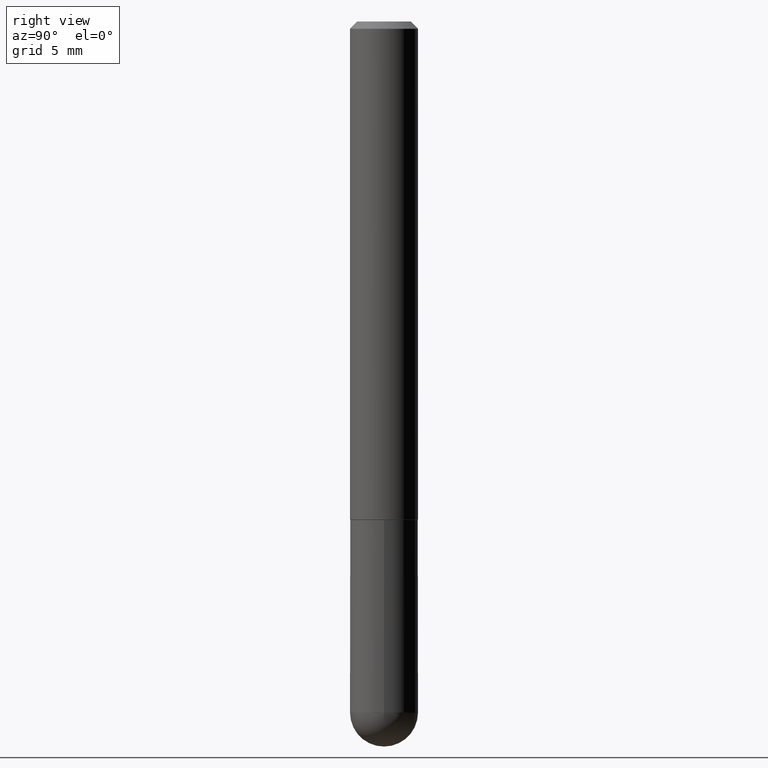
[diagram: clean part render]
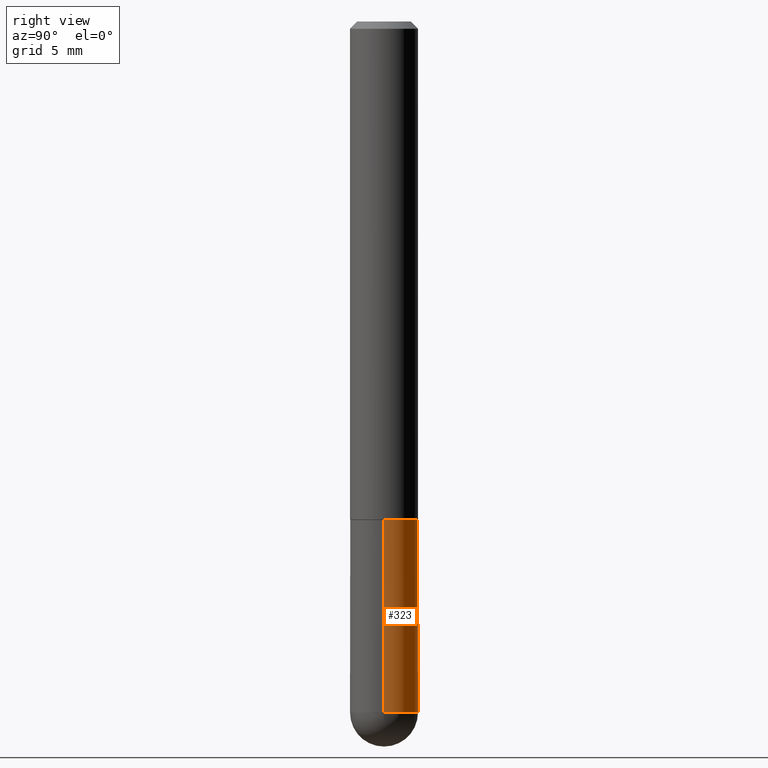
[diagram: same view with one face highlighted and labeled with its STEP entity id]
A machine part, right view. The second image highlights one B-rep face of the part: STEP entity #323.
In plain terms, the highlighted cylindrical surface (edge-blend (fillet) strip) has radius 2.3813 mm, axis along (-0, 0, 1).
Its self-contained STEP definition (entity closure, byte-faithful):
#4 = DIRECTION ( 'NONE',  ( -2.445468806185136597E-29, 3.491481338843145583E-15, 1.000000000000000000 ) ) ;
#6 = EDGE_LOOP ( 'NONE', ( #208, #407, #171, #248, #200 ) ) ;
#20 = DIRECTION ( 'NONE',  ( -2.445468806185136597E-29, 3.491481338843145583E-15, 1.000000000000000000 ) ) ;
#25 = DIRECTION ( 'NONE',  ( -2.445468806185136597E-29, 3.491481338843145583E-15, 1.000000000000000000 ) ) ;
#50 = CARTESIAN_POINT ( 'NONE',  ( 6.546527510331332580E-16, 0.09374999999999322764, -1.906250000000000222 ) ) ;
#60 = CARTESIAN_POINT ( 'NONE',  ( 4.661674911790416638E-29, -6.655636302169745441E-15, -1.906250000000000000 ) ) ;
#65 = DIRECTION ( 'NONE',  ( -2.445468806185136877E-29, 3.491481338843145188E-15, 1.000000000000000000 ) ) ;
#80 = AXIS2_PLACEMENT_3D ( 'NONE', #192, #262, #194 ) ;
#94 = EDGE_CURVE ( 'NONE', #401, #237, #108, .T. ) ;
#99 = DIRECTION ( 'NONE',  ( 1.000000000000000000, -6.982962677686261189E-15, 0.000000000000000000 ) ) ;
#102 = CARTESIAN_POINT ( 'NONE',  ( -0.09375000000000001388, -5.062077756764441261E-15, -1.375000000000000000 ) ) ;
#108 = CIRCLE ( 'NONE', #175, 0.09375000000000001388 ) ;
#125 = DIRECTION ( 'NONE',  ( 1.000000000000000000, -6.982962677686261189E-15, 0.000000000000000000 ) ) ;
#131 = CYLINDRICAL_SURFACE ( 'NONE', #80, 0.09375000000000001388 ) ;
#132 = LINE ( 'NONE', #383, #239 ) ;
#138 = AXIS2_PLACEMENT_3D ( 'NONE', #60, #25, #155 ) ;
#155 = DIRECTION ( 'NONE',  ( 1.000000000000000000, -6.982962677686261189E-15, 0.000000000000000000 ) ) ;
#157 = DIRECTION ( 'NONE',  ( -2.445468806185136877E-29, 3.491481338843145188E-15, 1.000000000000000000 ) ) ;
#171 = ORIENTED_EDGE ( 'NONE', *, *, #94, .F. ) ;
#174 = EDGE_CURVE ( 'NONE', #363, #328, #216, .T. ) ;
#175 = AXIS2_PLACEMENT_3D ( 'NONE', #408, #20, #125 ) ;
#188 = CARTESIAN_POINT ( 'NONE',  ( -0.09375000000000001388, 6.661338147750940229E-16, -4.611501647113973995E-30 ) ) ;
#192 = CARTESIAN_POINT ( 'NONE',  ( 0.000000000000000000, 0.000000000000000000, 0.000000000000000000 ) ) ;
#194 = DIRECTION ( 'NONE',  ( 1.000000000000000000, -6.982962677686265922E-15, 4.876176775795935793E-29 ) ) ;
#196 = CARTESIAN_POINT ( 'NONE',  ( 0.09375000000000001388, -5.455439591942412434E-15, -1.375000000000000000 ) ) ;
#200 = ORIENTED_EDGE ( 'NONE', *, *, #174, .T. ) ;
#208 = ORIENTED_EDGE ( 'NONE', *, *, #317, .T. ) ;
#216 = CIRCLE ( 'NONE', #138, 0.09375000000000001388 ) ;
#224 = FACE_OUTER_BOUND ( 'NONE', #6, .T. ) ;
#229 = VECTOR ( 'NONE', #65, 39.37007874015748143 ) ;
#237 = VERTEX_POINT ( 'NONE', #102 ) ;
#238 = CARTESIAN_POINT ( 'NONE',  ( 0.09375000000000001388, -6.382864322572621901E-15, -1.906250000000000000 ) ) ;
#239 = VECTOR ( 'NONE', #157, 39.37007874015748143 ) ;
#240 = VERTEX_POINT ( 'NONE', #387 ) ;
#241 = EDGE_CURVE ( 'NONE', #363, #401, #132, .T. ) ;
#248 = ORIENTED_EDGE ( 'NONE', *, *, #241, .F. ) ;
#261 = AXIS2_PLACEMENT_3D ( 'NONE', #320, #4, #99 ) ;
#262 = DIRECTION ( 'NONE',  ( -2.445468806185136597E-29, 3.491481338843145583E-15, 1.000000000000000000 ) ) ;
#311 = EDGE_CURVE ( 'NONE', #240, #237, #385, .T. ) ;
#317 = EDGE_CURVE ( 'NONE', #328, #240, #343, .T. ) ;
#320 = CARTESIAN_POINT ( 'NONE',  ( 4.661674911790416638E-29, -6.655636302169745441E-15, -1.906250000000000000 ) ) ;
#323 = ADVANCED_FACE ( 'NONE', ( #224 ), #131, .T. ) ;
#328 = VERTEX_POINT ( 'NONE', #50 ) ;
#343 = CIRCLE ( 'NONE', #261, 0.09375000000000001388 ) ;
#363 = VERTEX_POINT ( 'NONE', #238 ) ;
#383 = CARTESIAN_POINT ( 'NONE',  ( 0.09375000000000001388, -6.546527510330875041E-16, 4.571415727308690506E-30 ) ) ;
#385 = LINE ( 'NONE', #188, #229 ) ;
#387 = CARTESIAN_POINT ( 'NONE',  ( -0.09375000000000001388, -5.062077756764441261E-15, -1.906250000000000000 ) ) ;
#401 = VERTEX_POINT ( 'NONE', #196 ) ;
#407 = ORIENTED_EDGE ( 'NONE', *, *, #311, .T. ) ;
#408 = CARTESIAN_POINT ( 'NONE',  ( 3.362519608504562260E-29, -4.800786840909324930E-15, -1.375000000000000000 ) ) ;